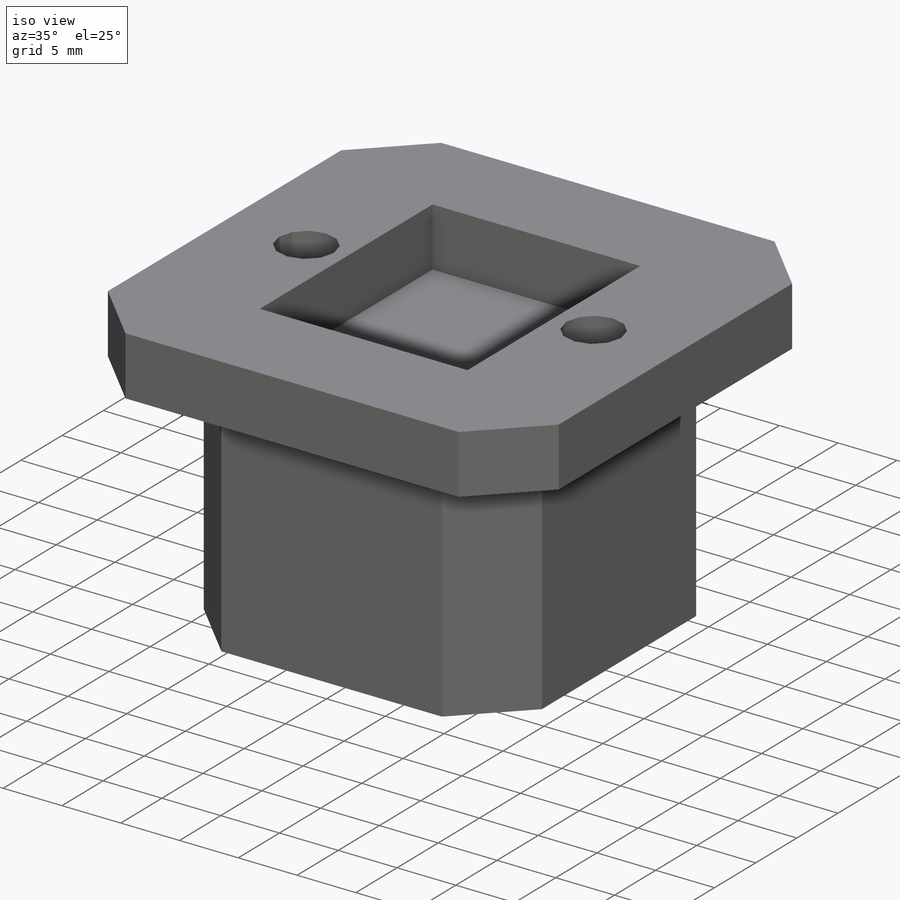
[diagram: iso view]
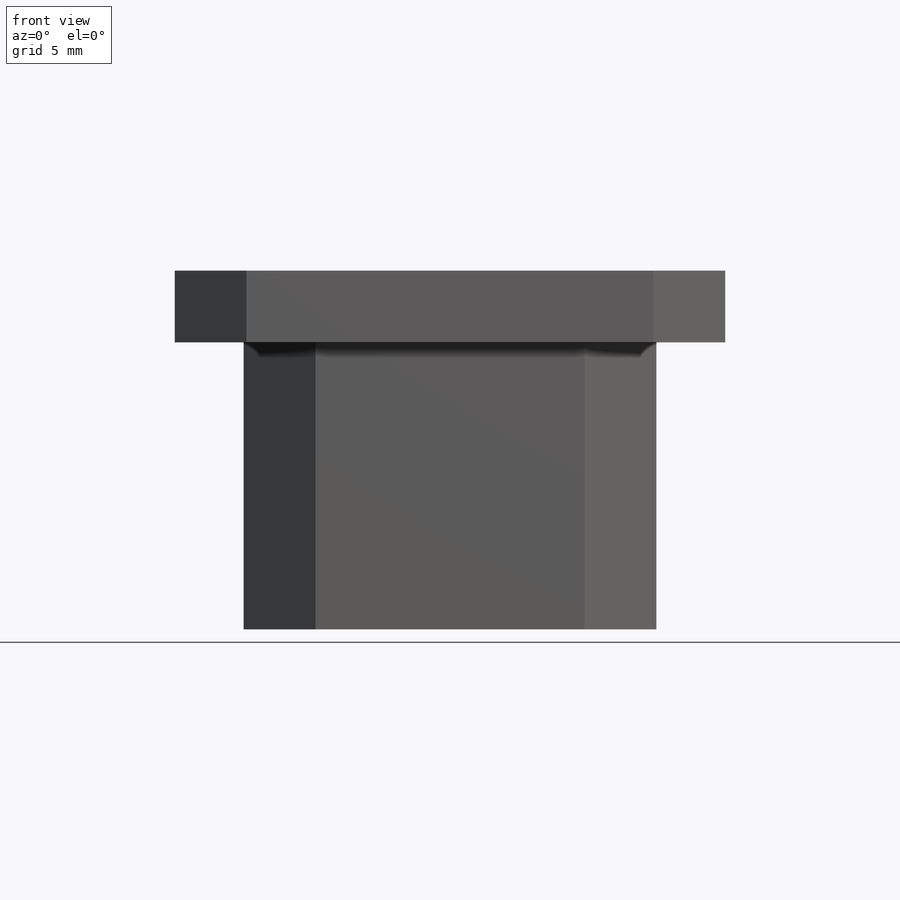
[diagram: front view]
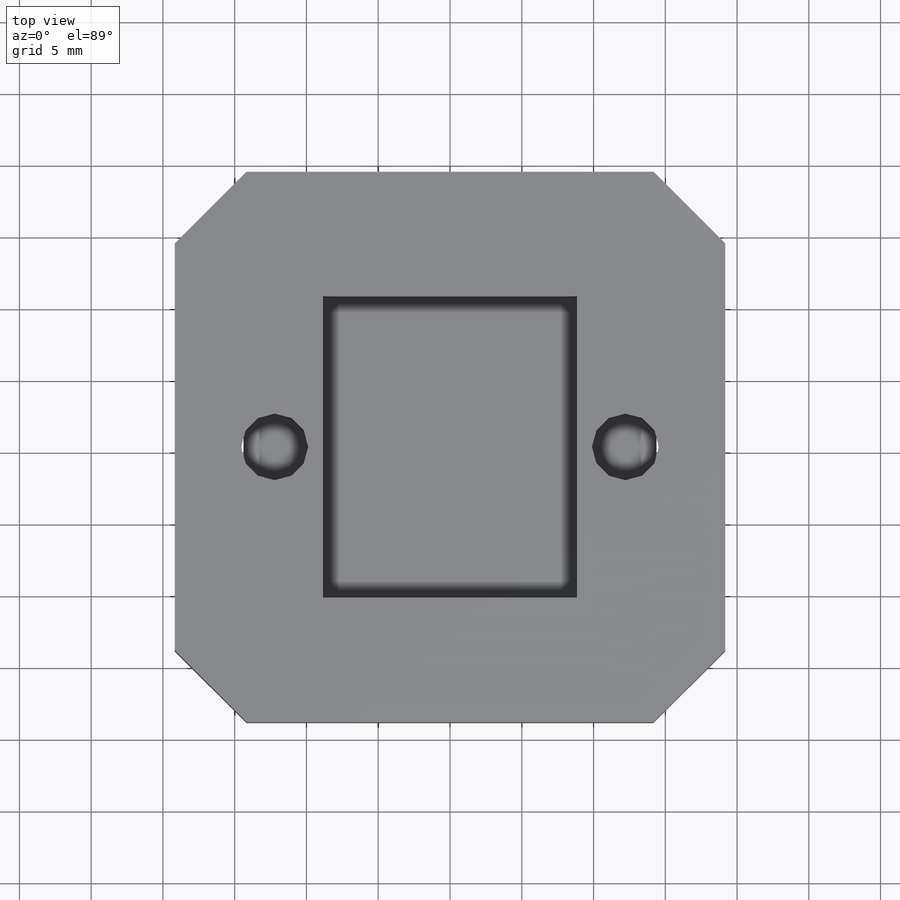
[diagram: top view]
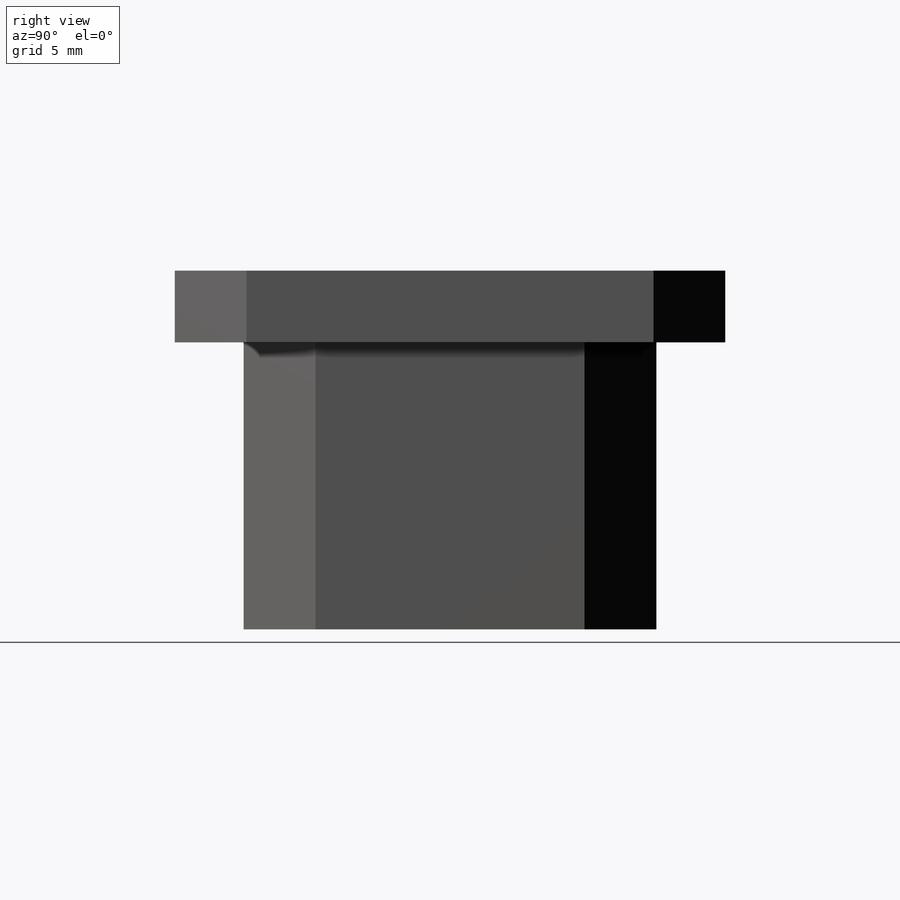
[diagram: right view]
SOLIDWORKS PART (.sldprt)
format: sldprt  version: not decoded by parser v0  size: 226,816 bytes
history: native  units: mm
features: sketch x4, extrude x2, cut_extrude x2, material x1, chamfer x1 (+13 scaffold rows collapsed)
feature tree (23):
  scaffold x13  (default folders/planes/origin — collapsed)
  material  "Material <not specified>"
  sketch  "Sketch1"
  extrude  "Boss-Extrude1"  Depth=5mm
  sketch  "Sketch2"  dims[D1=4.8mm]
  extrude  "Boss-Extrude2"  Depth=20mm
  chamfer  "Chamfer1"  Distance=5mm Angle=45deg
  sketch  "Sketch3"
  cut_extrude  "Cut-Extrude1"  [1 undecoded]
  sketch  "Sketch4"
  cut_extrude  "Cut-Extrude2"  Depth=9mm
decode coverage: 5 of 9 modeling features carry decoded parameters
note: 1 parameter value undecoded
note: suppression state not decoded; provenance and decode notes live in map.json
